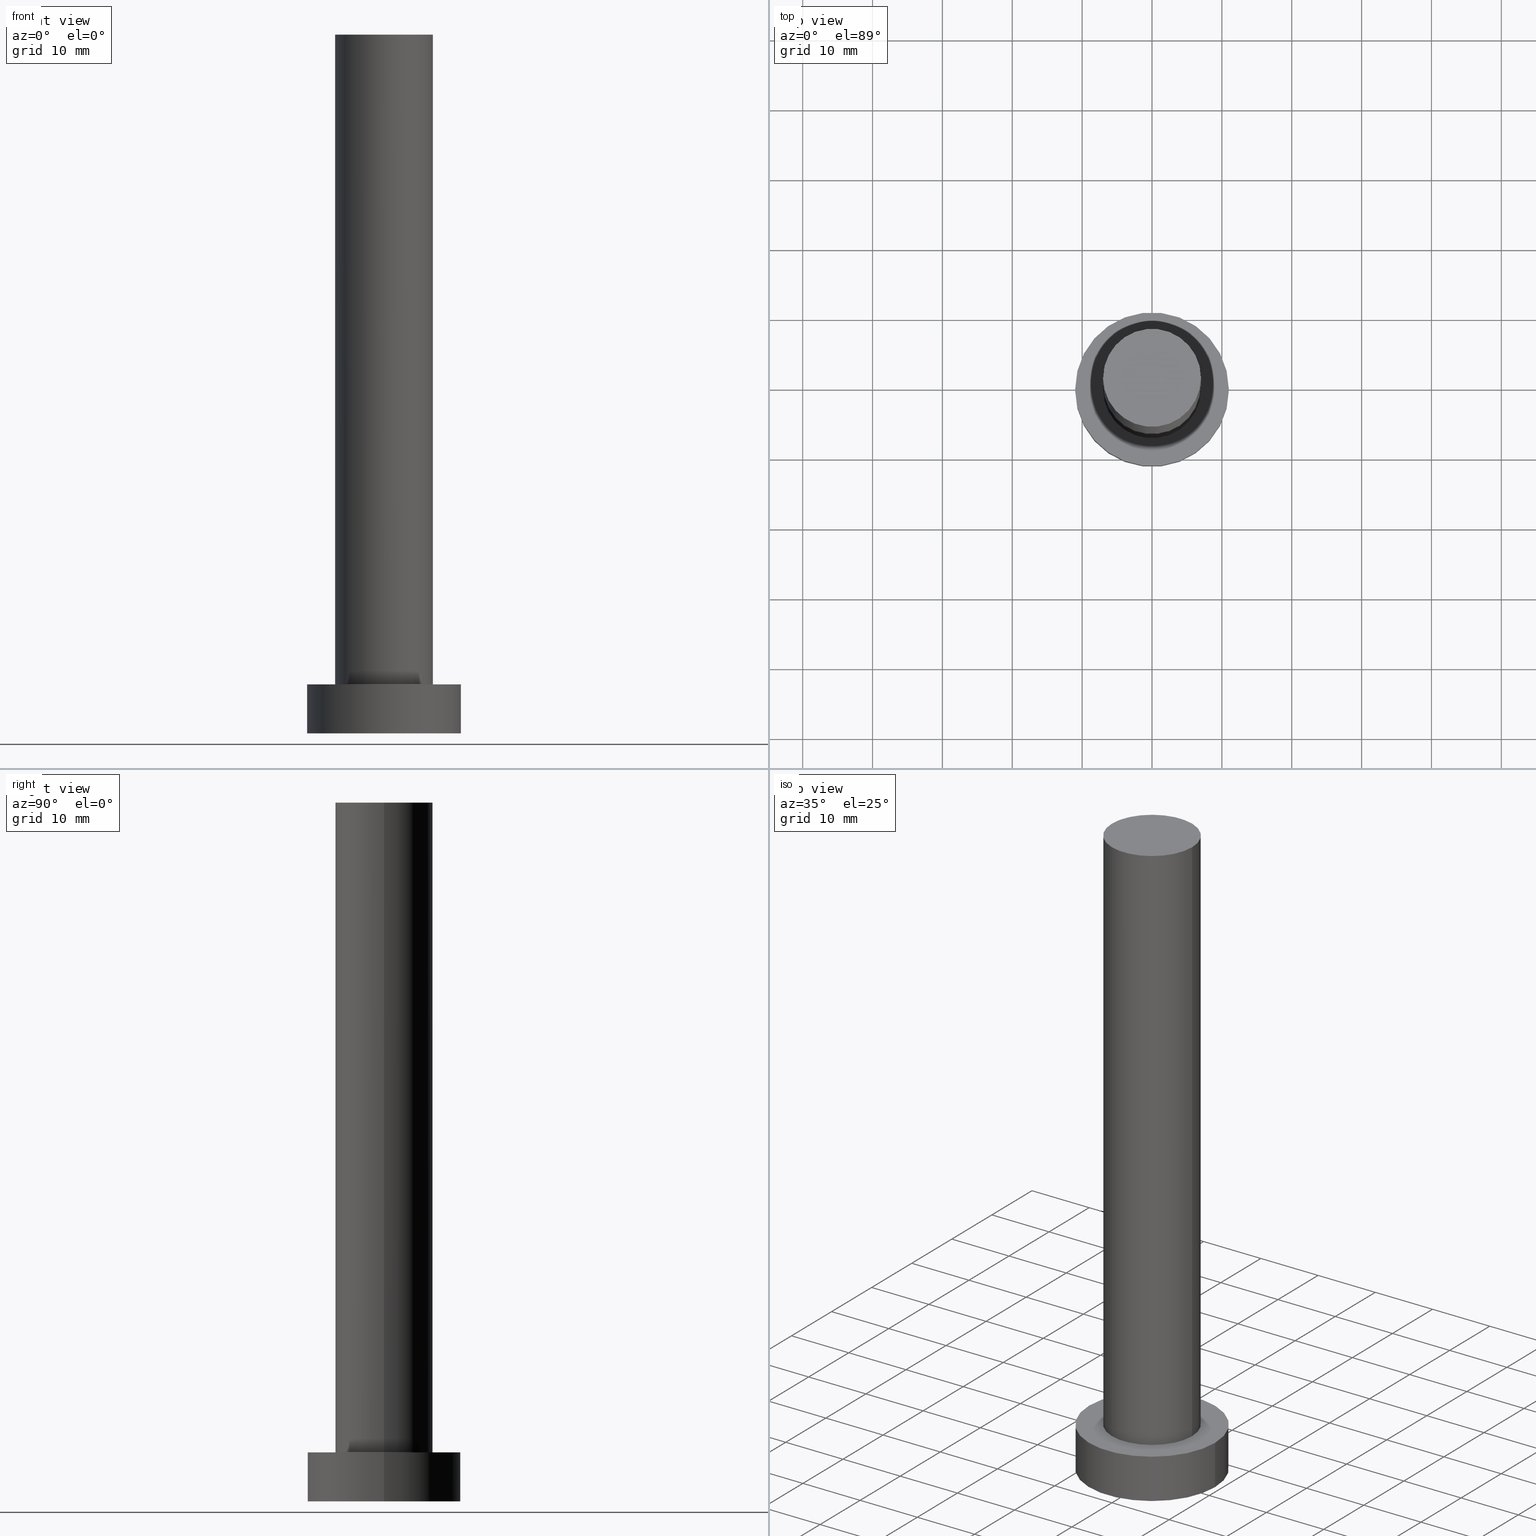
[diagram: canonical four-view strip — front | top / right | iso, engineering-drawing reading convention]
A machine part, canonical four-view strip (front | top / right | iso — engineering-drawing reading convention). The complete STEP part file that produces these views, byte-faithful:
ISO-10303-21;
HEADER;
FILE_DESCRIPTION (( 'STEP AP203' ),
    '1' );
FILE_NAME ('8523.STEP',
    '2023-02-13T09:17:31',
    ( '' ),
    ( '' ),
    'SwSTEP 2.0',
    'SolidWorks 2019',
    '' );
FILE_SCHEMA (( 'CONFIG_CONTROL_DESIGN' ));
ENDSEC;

DATA;
#1 = CC_DESIGN_PERSON_AND_ORGANIZATION_ASSIGNMENT ( #220, #203, ( #92 ) ) ;
#2 = DIRECTION ( 'NONE',  ( 0.000000000000000000, 0.000000000000000000, 1.000000000000000000 ) ) ;
#3 = VECTOR ( 'NONE', #215, 1000.000000000000000 ) ;
#4 =( NAMED_UNIT ( * ) SI_UNIT ( $, .STERADIAN. ) SOLID_ANGLE_UNIT ( ) );
#5 = PRODUCT_RELATED_PRODUCT_CATEGORY ( 'detail', '', ( #92 ) ) ;
#6 = MECHANICAL_CONTEXT ( 'NONE', #211, 'mechanical' ) ;
#7 = CIRCLE ( 'NONE', #102, 11.00000000000000000 ) ;
#8 = AXIS2_PLACEMENT_3D ( 'NONE', #80, #136, #196 ) ;
#9 = ADVANCED_FACE ( 'NONE', ( #188 ), #16, .F. ) ;
#10 = DATE_AND_TIME ( #108, #195 ) ;
#11 = DATE_AND_TIME ( #87, #143 ) ;
#12 = DATE_AND_TIME ( #73, #228 ) ;
#13 = EDGE_LOOP ( 'NONE', ( #115, #241 ) ) ;
#14 = CYLINDRICAL_SURFACE ( 'NONE', #163, 11.00000000000000000 ) ;
#15 = VERTEX_POINT ( 'NONE', #96 ) ;
#16 = PLANE ( 'NONE',  #82 ) ;
#17 = EDGE_CURVE ( 'NONE', #105, #15, #7, .T. ) ;
#18 = AXIS2_PLACEMENT_3D ( 'NONE', #175, #2, #177 ) ;
#19 = DIRECTION ( 'NONE',  ( 0.000000000000000000, 0.000000000000000000, 1.000000000000000000 ) ) ;
#20 = DIRECTION ( 'NONE',  ( -1.000000000000000000, 0.000000000000000000, 0.000000000000000000 ) ) ;
#21 = CARTESIAN_POINT ( 'NONE',  ( -11.00000000000000000, 0.000000000000000000, 7.000000000000000000 ) ) ;
#22 =( LENGTH_UNIT ( ) NAMED_UNIT ( * ) SI_UNIT ( .MILLI., .METRE. ) );
#23 = FACE_OUTER_BOUND ( 'NONE', #57, .T. ) ;
#24 = VERTEX_POINT ( 'NONE', #247 ) ;
#25 = CALENDAR_DATE ( 2023, 13, 2 ) ;
#26 = CALENDAR_DATE ( 2023, 13, 2 ) ;
#27 = CC_DESIGN_APPROVAL ( #119, ( #70 ) ) ;
#28 = PERSON_AND_ORGANIZATION ( #165, #238 ) ;
#29 = CARTESIAN_POINT ( 'NONE',  ( 11.00000000000000000, 1.347111479062088405E-15, 0.000000000000000000 ) ) ;
#30 = DIRECTION ( 'NONE',  ( -0.000000000000000000, -0.000000000000000000, -1.000000000000000000 ) ) ;
#31 = AXIS2_PLACEMENT_3D ( 'NONE', #97, #160, #199 ) ;
#32 = APPROVAL_PERSON_ORGANIZATION ( #28, #119, #127 ) ;
#33 = DIRECTION ( 'NONE',  ( 0.000000000000000000, 0.000000000000000000, 1.000000000000000000 ) ) ;
#34 = ORIENTED_EDGE ( 'NONE', *, *, #189, .T. ) ;
#35 = DIRECTION ( 'NONE',  ( 1.000000000000000000, 0.000000000000000000, -0.000000000000000000 ) ) ;
#36 = AXIS2_PLACEMENT_3D ( 'NONE', #123, #122, #140 ) ;
#37 = DIRECTION ( 'NONE',  ( 0.000000000000000000, 0.000000000000000000, 1.000000000000000000 ) ) ;
#38 = DIRECTION ( 'NONE',  ( -0.000000000000000000, -0.000000000000000000, -1.000000000000000000 ) ) ;
#39 = CARTESIAN_POINT ( 'NONE',  ( 7.000000000000000000, 8.572527594031471218E-16, 100.0000000000000000 ) ) ;
#40 = DIRECTION ( 'NONE',  ( 1.000000000000000000, 0.000000000000000000, 0.000000000000000000 ) ) ;
#41 = DIRECTION ( 'NONE',  ( -1.000000000000000000, 0.000000000000000000, 0.000000000000000000 ) ) ;
#42 = EDGE_CURVE ( 'NONE', #151, #190, #147, .T. ) ;
#43 = PERSON_AND_ORGANIZATION_ROLE ( 'creator' ) ;
#44 = ADVANCED_FACE ( 'NONE', ( #207, #74 ), #155, .T. ) ;
#45 = ORIENTED_EDGE ( 'NONE', *, *, #137, .F. ) ;
#46 = APPROVAL_PERSON_ORGANIZATION ( #239, #206, #66 ) ;
#47 = APPROVAL_STATUS ( 'not_yet_approved' ) ;
#48 = VECTOR ( 'NONE', #197, 1000.000000000000000 ) ;
#49 = DIRECTION ( 'NONE',  ( 0.000000000000000000, 0.000000000000000000, 1.000000000000000000 ) ) ;
#50 = CARTESIAN_POINT ( 'NONE',  ( 0.000000000000000000, 0.000000000000000000, 7.000000000000000000 ) ) ;
#51 = PRODUCT_DEFINITION ( 'NEZN�M�', '', #159, #118 ) ;
#52 = FACE_OUTER_BOUND ( 'NONE', #13, .T. ) ;
#53 = AXIS2_PLACEMENT_3D ( 'NONE', #173, #49, #35 ) ;
#54 = PRODUCT_DEFINITION_SHAPE ( 'NONE', 'NONE',  #51 ) ;
#55 = LOCAL_TIME ( 10, 17, 31.00000000000000000, #204 ) ;
#56 = CARTESIAN_POINT ( 'NONE',  ( 0.000000000000000000, 0.000000000000000000, 7.000000000000000000 ) ) ;
#57 = EDGE_LOOP ( 'NONE', ( #225, #233, #34, #180 ) ) ;
#58 = AXIS2_PLACEMENT_3D ( 'NONE', #229, #128, #205 ) ;
#59 = DIRECTION ( 'NONE',  ( -0.000000000000000000, -0.000000000000000000, -1.000000000000000000 ) ) ;
#60 = CARTESIAN_POINT ( 'NONE',  ( -11.00000000000000000, 0.000000000000000000, 7.000000000000000000 ) ) ;
#61 = CARTESIAN_POINT ( 'NONE',  ( 0.000000000000000000, 0.000000000000000000, 100.0000000000000000 ) ) ;
#62 = EDGE_CURVE ( 'NONE', #24, #90, #112, .T. ) ;
#63 = DIRECTION ( 'NONE',  ( 0.000000000000000000, 0.000000000000000000, 1.000000000000000000 ) ) ;
#64 = PERSON_AND_ORGANIZATION ( #165, #238 ) ;
#65 = ORIENTED_EDGE ( 'NONE', *, *, #42, .T. ) ;
#66 = APPROVAL_ROLE ( '' ) ;
#67 = ORIENTED_EDGE ( 'NONE', *, *, #242, .T. ) ;
#68 = PERSON_AND_ORGANIZATION_ROLE ( 'creator' ) ;
#69 = ORIENTED_EDGE ( 'NONE', *, *, #17, .F. ) ;
#70 = SECURITY_CLASSIFICATION ( '', '', #141 ) ;
#71 = DATE_TIME_ROLE ( 'creation_date' ) ;
#72 = DIRECTION ( 'NONE',  ( 0.000000000000000000, 0.000000000000000000, 1.000000000000000000 ) ) ;
#73 = CALENDAR_DATE ( 2023, 13, 2 ) ;
#74 = FACE_OUTER_BOUND ( 'NONE', #192, .T. ) ;
#75 = ORIENTED_EDGE ( 'NONE', *, *, #189, .F. ) ;
#76 = EDGE_LOOP ( 'NONE', ( #185, #117, #126, #124 ) ) ;
#77 = DIRECTION ( 'NONE',  ( 1.000000000000000000, 0.000000000000000000, 0.000000000000000000 ) ) ;
#78 = AXIS2_PLACEMENT_3D ( 'NONE', #50, #249, #232 ) ;
#79 = CC_DESIGN_APPROVAL ( #206, ( #159 ) ) ;
#80 = CARTESIAN_POINT ( 'NONE',  ( 0.000000000000000000, 0.000000000000000000, 100.0000000000000000 ) ) ;
#81 = LINE ( 'NONE', #237, #3 ) ;
#82 = AXIS2_PLACEMENT_3D ( 'NONE', #93, #72, #212 ) ;
#83 = ADVANCED_FACE ( 'NONE', ( #52 ), #130, .T. ) ;
#84 = CC_DESIGN_APPROVAL ( #152, ( #51 ) ) ;
#85 = ADVANCED_FACE ( 'NONE', ( #133 ), #194, .T. ) ;
#86 = AXIS2_PLACEMENT_3D ( 'NONE', #255, #37, #40 ) ;
#87 = CALENDAR_DATE ( 2023, 13, 2 ) ;
#88 = PERSON_AND_ORGANIZATION ( #165, #238 ) ;
#89 = PERSON_AND_ORGANIZATION ( #165, #238 ) ;
#90 = VERTEX_POINT ( 'NONE', #148 ) ;
#91 = DIRECTION ( 'NONE',  ( 1.000000000000000000, 0.000000000000000000, 0.000000000000000000 ) ) ;
#92 = PRODUCT ( '8523', '8523', '', ( #6 ) ) ;
#93 = CARTESIAN_POINT ( 'NONE',  ( 0.000000000000000000, 0.000000000000000000, 0.000000000000000000 ) ) ;
#94 = CC_DESIGN_PERSON_AND_ORGANIZATION_ASSIGNMENT ( #89, #68, ( #51 ) ) ;
#95 = DIRECTION ( 'NONE',  ( 1.000000000000000000, 0.000000000000000000, 0.000000000000000000 ) ) ;
#96 = CARTESIAN_POINT ( 'NONE',  ( -11.00000000000000000, 0.000000000000000000, 0.000000000000000000 ) ) ;
#97 = CARTESIAN_POINT ( 'NONE',  ( 0.000000000000000000, 0.000000000000000000, 7.000000000000000000 ) ) ;
#98 = CIRCLE ( 'NONE', #36, 11.00000000000000000 ) ;
#99 = CYLINDRICAL_SURFACE ( 'NONE', #104, 7.000000000000000000 ) ;
#100 = EDGE_CURVE ( 'NONE', #172, #213, #103, .T. ) ;
#101 = APPROVAL_DATE_TIME ( #146, #119 ) ;
#102 = AXIS2_PLACEMENT_3D ( 'NONE', #170, #33, #91 ) ;
#103 = CIRCLE ( 'NONE', #58, 7.000000000000000000 ) ;
#104 = AXIS2_PLACEMENT_3D ( 'NONE', #61, #38, #41 ) ;
#105 = VERTEX_POINT ( 'NONE', #29 ) ;
#106 = APPROVAL_ROLE ( '' ) ;
#107 = ADVANCED_FACE ( 'NONE', ( #113 ), #14, .T. ) ;
#108 = CALENDAR_DATE ( 2023, 13, 2 ) ;
#109 = APPROVAL_DATE_TIME ( #10, #152 ) ;
#110 = ORIENTED_EDGE ( 'NONE', *, *, #131, .T. ) ;
#111 = EDGE_CURVE ( 'NONE', #213, #172, #253, .T. ) ;
#112 = CIRCLE ( 'NONE', #183, 7.000000000000000000 ) ;
#113 = FACE_OUTER_BOUND ( 'NONE', #76, .T. ) ;
#114 =( GEOMETRIC_REPRESENTATION_CONTEXT ( 3 ) GLOBAL_UNCERTAINTY_ASSIGNED_CONTEXT ( ( #156 ) ) GLOBAL_UNIT_ASSIGNED_CONTEXT ( ( #22, #198, #4 ) ) REPRESENTATION_CONTEXT ( 'NONE', 'WORKASPACE' ) );
#115 = ORIENTED_EDGE ( 'NONE', *, *, #100, .T. ) ;
#116 = ORIENTED_EDGE ( 'NONE', *, *, #62, .F. ) ;
#117 = ORIENTED_EDGE ( 'NONE', *, *, #179, .F. ) ;
#118 = DESIGN_CONTEXT ( 'detailed design', #217, 'design' ) ;
#119 = APPROVAL ( #47, 'NEUR�EN�' ) ;
#120 = APPLICATION_PROTOCOL_DEFINITION ( 'international standard', 'config_control_design', 1994, #211 ) ;
#121 = LINE ( 'NONE', #161, #48 ) ;
#122 = DIRECTION ( 'NONE',  ( 0.000000000000000000, 0.000000000000000000, 1.000000000000000000 ) ) ;
#123 = CARTESIAN_POINT ( 'NONE',  ( 0.000000000000000000, 0.000000000000000000, 7.000000000000000000 ) ) ;
#124 = ORIENTED_EDGE ( 'NONE', *, *, #137, .T. ) ;
#125 = PERSON_AND_ORGANIZATION ( #165, #238 ) ;
#126 = ORIENTED_EDGE ( 'NONE', *, *, #201, .T. ) ;
#127 = APPROVAL_ROLE ( '' ) ;
#128 = DIRECTION ( 'NONE',  ( 0.000000000000000000, 0.000000000000000000, 1.000000000000000000 ) ) ;
#129 = EDGE_CURVE ( 'NONE', #90, #24, #158, .T. ) ;
#130 = PLANE ( 'NONE',  #53 ) ;
#131 = EDGE_CURVE ( 'NONE', #151, #105, #81, .T. ) ;
#132 = PERSON_AND_ORGANIZATION_ROLE ( 'classification_officer' ) ;
#133 = FACE_OUTER_BOUND ( 'NONE', #150, .T. ) ;
#134 = CARTESIAN_POINT ( 'NONE',  ( 0.000000000000000000, 0.000000000000000000, 7.000000000000000000 ) ) ;
#135 = ORIENTED_EDGE ( 'NONE', *, *, #111, .F. ) ;
#136 = DIRECTION ( 'NONE',  ( -0.000000000000000000, -0.000000000000000000, -1.000000000000000000 ) ) ;
#137 = EDGE_CURVE ( 'NONE', #15, #105, #149, .T. ) ;
#138 = LINE ( 'NONE', #21, #154 ) ;
#139 = FACE_OUTER_BOUND ( 'NONE', #223, .T. ) ;
#140 = DIRECTION ( 'NONE',  ( 1.000000000000000000, 0.000000000000000000, 0.000000000000000000 ) ) ;
#141 = SECURITY_CLASSIFICATION_LEVEL ( 'unclassified' ) ;
#142 = CC_DESIGN_PERSON_AND_ORGANIZATION_ASSIGNMENT ( #64, #43, ( #159 ) ) ;
#143 = LOCAL_TIME ( 10, 17, 31.00000000000000000, #248 ) ;
#144 = ORIENTED_EDGE ( 'NONE', *, *, #201, .F. ) ;
#145 = APPROVAL_DATE_TIME ( #12, #206 ) ;
#146 = DATE_AND_TIME ( #26, #55 ) ;
#147 = CIRCLE ( 'NONE', #78, 11.00000000000000000 ) ;
#148 = CARTESIAN_POINT ( 'NONE',  ( -7.000000000000000000, 0.000000000000000000, 7.000000000000000000 ) ) ;
#149 = CIRCLE ( 'NONE', #86, 11.00000000000000000 ) ;
#150 = EDGE_LOOP ( 'NONE', ( #246, #110, #244, #144 ) ) ;
#151 = VERTEX_POINT ( 'NONE', #236 ) ;
#152 = APPROVAL ( #168, 'NEUR�EN�' ) ;
#153 = EDGE_LOOP ( 'NONE', ( #45, #69 ) ) ;
#154 = VECTOR ( 'NONE', #174, 1000.000000000000000 ) ;
#155 = PLANE ( 'NONE',  #221 ) ;
#156 = UNCERTAINTY_MEASURE_WITH_UNIT (LENGTH_MEASURE( 1.000000000000000082E-05 ), #22, 'distance_accuracy_value', 'NONE');
#157 = LINE ( 'NONE', #235, #214 ) ;
#158 = CIRCLE ( 'NONE', #31, 7.000000000000000000 ) ;
#159 = PRODUCT_DEFINITION_FORMATION_WITH_SPECIFIED_SOURCE ( 'LIBOVOLN�', '', #92, .NOT_KNOWN. ) ;
#160 = DIRECTION ( 'NONE',  ( 0.000000000000000000, 0.000000000000000000, 1.000000000000000000 ) ) ;
#161 = CARTESIAN_POINT ( 'NONE',  ( 7.000000000000000000, 8.572527594031471218E-16, 100.0000000000000000 ) ) ;
#162 = DIRECTION ( 'NONE',  ( -0.000000000000000000, -0.000000000000000000, -1.000000000000000000 ) ) ;
#163 = AXIS2_PLACEMENT_3D ( 'NONE', #171, #59, #20 ) ;
#164 = CC_DESIGN_PERSON_AND_ORGANIZATION_ASSIGNMENT ( #125, #132, ( #70 ) ) ;
#165 = PERSON ( 'NEUR�EN�', 'NEUR�EN�', 'NEUR�EN�', ('NEUR�EN�'), ('NEUR�EN�'), ('NEUR�EN�') ) ;
#166 = AXIS2_PLACEMENT_3D ( 'NONE', #254, #30, #210 ) ;
#167 = COORDINATED_UNIVERSAL_TIME_OFFSET ( 1, 0, .AHEAD. ) ;
#168 = APPROVAL_STATUS ( 'not_yet_approved' ) ;
#169 = COORDINATED_UNIVERSAL_TIME_OFFSET ( 1, 0, .AHEAD. ) ;
#170 = CARTESIAN_POINT ( 'NONE',  ( 0.000000000000000000, 0.000000000000000000, 0.000000000000000000 ) ) ;
#171 = CARTESIAN_POINT ( 'NONE',  ( 0.000000000000000000, 0.000000000000000000, 7.000000000000000000 ) ) ;
#172 = VERTEX_POINT ( 'NONE', #234 ) ;
#173 = CARTESIAN_POINT ( 'NONE',  ( 0.000000000000000000, 0.000000000000000000, 100.0000000000000000 ) ) ;
#174 = DIRECTION ( 'NONE',  ( -0.000000000000000000, -0.000000000000000000, -1.000000000000000000 ) ) ;
#175 = CARTESIAN_POINT ( 'NONE',  ( 0.000000000000000000, 0.000000000000000000, 0.000000000000000000 ) ) ;
#176 = CYLINDRICAL_SURFACE ( 'NONE', #8, 7.000000000000000000 ) ;
#177 = DIRECTION ( 'NONE',  ( 1.000000000000000000, 0.000000000000000000, 0.000000000000000000 ) ) ;
#178 = APPROVAL_PERSON_ORGANIZATION ( #243, #152, #106 ) ;
#179 = EDGE_CURVE ( 'NONE', #190, #151, #98, .T. ) ;
#180 = ORIENTED_EDGE ( 'NONE', *, *, #129, .T. ) ;
#181 = ORIENTED_EDGE ( 'NONE', *, *, #129, .F. ) ;
#182 = CLOSED_SHELL ( 'NONE', ( #216, #85, #107, #44, #9, #224, #83 ) ) ;
#183 = AXIS2_PLACEMENT_3D ( 'NONE', #134, #19, #95 ) ;
#184 = APPROVAL_STATUS ( 'not_yet_approved' ) ;
#185 = ORIENTED_EDGE ( 'NONE', *, *, #131, .F. ) ;
#186 = DATE_TIME_ROLE ( 'classification_date' ) ;
#187 = COORDINATED_UNIVERSAL_TIME_OFFSET ( 1, 0, .AHEAD. ) ;
#188 = FACE_OUTER_BOUND ( 'NONE', #153, .T. ) ;
#189 = EDGE_CURVE ( 'NONE', #172, #90, #157, .T. ) ;
#190 = VERTEX_POINT ( 'NONE', #60 ) ;
#191 = CC_DESIGN_SECURITY_CLASSIFICATION ( #70, ( #159 ) ) ;
#192 = EDGE_LOOP ( 'NONE', ( #202, #65 ) ) ;
#193 = ORIENTED_EDGE ( 'NONE', *, *, #62, .T. ) ;
#194 = CYLINDRICAL_SURFACE ( 'NONE', #166, 11.00000000000000000 ) ;
#195 = LOCAL_TIME ( 10, 17, 31.00000000000000000, #167 ) ;
#196 = DIRECTION ( 'NONE',  ( -1.000000000000000000, 0.000000000000000000, 0.000000000000000000 ) ) ;
#197 = DIRECTION ( 'NONE',  ( -0.000000000000000000, -0.000000000000000000, -1.000000000000000000 ) ) ;
#198 =( NAMED_UNIT ( * ) PLANE_ANGLE_UNIT ( ) SI_UNIT ( $, .RADIAN. ) );
#199 = DIRECTION ( 'NONE',  ( 1.000000000000000000, 0.000000000000000000, 0.000000000000000000 ) ) ;
#200 = CC_DESIGN_PERSON_AND_ORGANIZATION_ASSIGNMENT ( #88, #226, ( #159 ) ) ;
#201 = EDGE_CURVE ( 'NONE', #190, #15, #138, .T. ) ;
#202 = ORIENTED_EDGE ( 'NONE', *, *, #179, .T. ) ;
#203 = PERSON_AND_ORGANIZATION_ROLE ( 'design_owner' ) ;
#204 = COORDINATED_UNIVERSAL_TIME_OFFSET ( 1, 0, .AHEAD. ) ;
#205 = DIRECTION ( 'NONE',  ( 1.000000000000000000, 0.000000000000000000, 0.000000000000000000 ) ) ;
#206 = APPROVAL ( #184, 'NEUR�EN�' ) ;
#207 = FACE_BOUND ( 'NONE', #250, .T. ) ;
#208 = APPLICATION_PROTOCOL_DEFINITION ( 'international standard', 'config_control_design', 1994, #217 ) ;
#209 = AXIS2_PLACEMENT_3D ( 'NONE', #219, #63, #77 ) ;
#210 = DIRECTION ( 'NONE',  ( -1.000000000000000000, 0.000000000000000000, 0.000000000000000000 ) ) ;
#211 = APPLICATION_CONTEXT ( 'configuration controlled 3d designs of mechanical parts and assemblies' ) ;
#212 = DIRECTION ( 'NONE',  ( 1.000000000000000000, 0.000000000000000000, -0.000000000000000000 ) ) ;
#213 = VERTEX_POINT ( 'NONE', #39 ) ;
#214 = VECTOR ( 'NONE', #162, 1000.000000000000000 ) ;
#215 = DIRECTION ( 'NONE',  ( -0.000000000000000000, -0.000000000000000000, -1.000000000000000000 ) ) ;
#216 = ADVANCED_FACE ( 'NONE', ( #139 ), #99, .T. ) ;
#217 = APPLICATION_CONTEXT ( 'configuration controlled 3d designs of mechanical parts and assemblies' ) ;
#218 = CC_DESIGN_DATE_AND_TIME_ASSIGNMENT ( #11, #71, ( #51 ) ) ;
#219 = CARTESIAN_POINT ( 'NONE',  ( 0.000000000000000000, 0.000000000000000000, 100.0000000000000000 ) ) ;
#220 = PERSON_AND_ORGANIZATION ( #165, #238 ) ;
#221 = AXIS2_PLACEMENT_3D ( 'NONE', #56, #231, #230 ) ;
#222 = LOCAL_TIME ( 10, 17, 31.00000000000000000, #169 ) ;
#223 = EDGE_LOOP ( 'NONE', ( #135, #67, #193, #75 ) ) ;
#224 = ADVANCED_FACE ( 'NONE', ( #23 ), #176, .T. ) ;
#225 = ORIENTED_EDGE ( 'NONE', *, *, #242, .F. ) ;
#226 = PERSON_AND_ORGANIZATION_ROLE ( 'design_supplier' ) ;
#227 = SHAPE_DEFINITION_REPRESENTATION ( #54, #251 ) ;
#228 = LOCAL_TIME ( 10, 17, 31.00000000000000000, #187 ) ;
#229 = CARTESIAN_POINT ( 'NONE',  ( 0.000000000000000000, 0.000000000000000000, 100.0000000000000000 ) ) ;
#230 = DIRECTION ( 'NONE',  ( 1.000000000000000000, 0.000000000000000000, -0.000000000000000000 ) ) ;
#231 = DIRECTION ( 'NONE',  ( 0.000000000000000000, 0.000000000000000000, 1.000000000000000000 ) ) ;
#232 = DIRECTION ( 'NONE',  ( 1.000000000000000000, 0.000000000000000000, 0.000000000000000000 ) ) ;
#233 = ORIENTED_EDGE ( 'NONE', *, *, #100, .F. ) ;
#234 = CARTESIAN_POINT ( 'NONE',  ( -7.000000000000000000, 0.000000000000000000, 100.0000000000000000 ) ) ;
#235 = CARTESIAN_POINT ( 'NONE',  ( -7.000000000000000000, 0.000000000000000000, 100.0000000000000000 ) ) ;
#236 = CARTESIAN_POINT ( 'NONE',  ( 11.00000000000000000, 1.347111479062088405E-15, 7.000000000000000000 ) ) ;
#237 = CARTESIAN_POINT ( 'NONE',  ( 11.00000000000000000, 1.347111479062088405E-15, 7.000000000000000000 ) ) ;
#238 = ORGANIZATION ( 'NEUR�EN�', 'NEUR�EN�', '' ) ;
#239 = PERSON_AND_ORGANIZATION ( #165, #238 ) ;
#240 = MANIFOLD_SOLID_BREP ( 'P�idat vysunut�m3', #182 ) ;
#241 = ORIENTED_EDGE ( 'NONE', *, *, #111, .T. ) ;
#242 = EDGE_CURVE ( 'NONE', #213, #24, #121, .T. ) ;
#243 = PERSON_AND_ORGANIZATION ( #165, #238 ) ;
#244 = ORIENTED_EDGE ( 'NONE', *, *, #17, .T. ) ;
#245 = DATE_AND_TIME ( #25, #222 ) ;
#246 = ORIENTED_EDGE ( 'NONE', *, *, #42, .F. ) ;
#247 = CARTESIAN_POINT ( 'NONE',  ( 7.000000000000000000, 8.572527594031471218E-16, 7.000000000000000000 ) ) ;
#248 = COORDINATED_UNIVERSAL_TIME_OFFSET ( 1, 0, .AHEAD. ) ;
#249 = DIRECTION ( 'NONE',  ( 0.000000000000000000, 0.000000000000000000, 1.000000000000000000 ) ) ;
#250 = EDGE_LOOP ( 'NONE', ( #181, #116 ) ) ;
#251 = ADVANCED_BREP_SHAPE_REPRESENTATION ( '8523', ( #240, #18 ), #114 ) ;
#252 = CC_DESIGN_DATE_AND_TIME_ASSIGNMENT ( #245, #186, ( #70 ) ) ;
#253 = CIRCLE ( 'NONE', #209, 7.000000000000000000 ) ;
#254 = CARTESIAN_POINT ( 'NONE',  ( 0.000000000000000000, 0.000000000000000000, 7.000000000000000000 ) ) ;
#255 = CARTESIAN_POINT ( 'NONE',  ( 0.000000000000000000, 0.000000000000000000, 0.000000000000000000 ) ) ;
ENDSEC;
END-ISO-10303-21;
